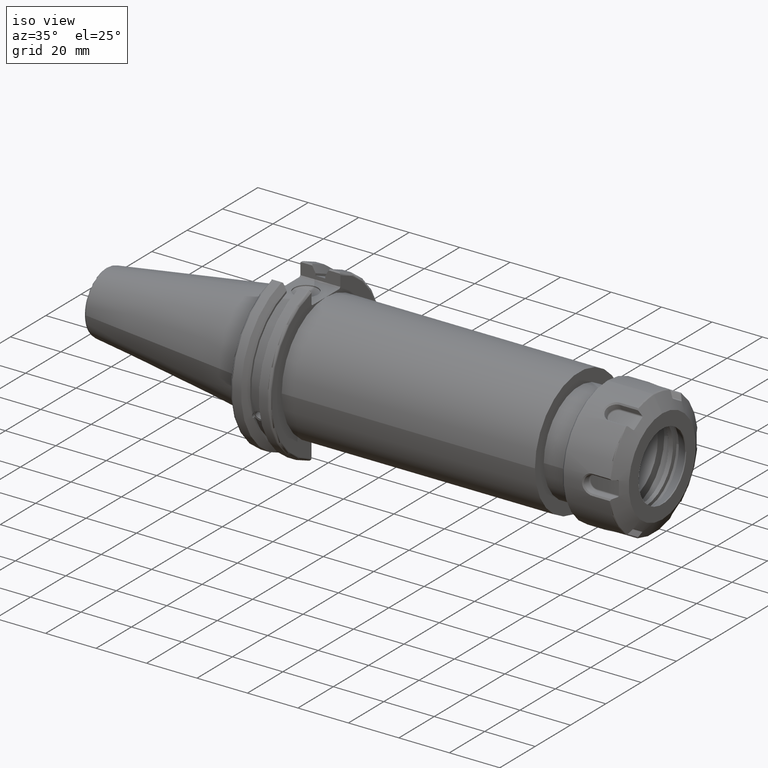
[diagram: clean part render]
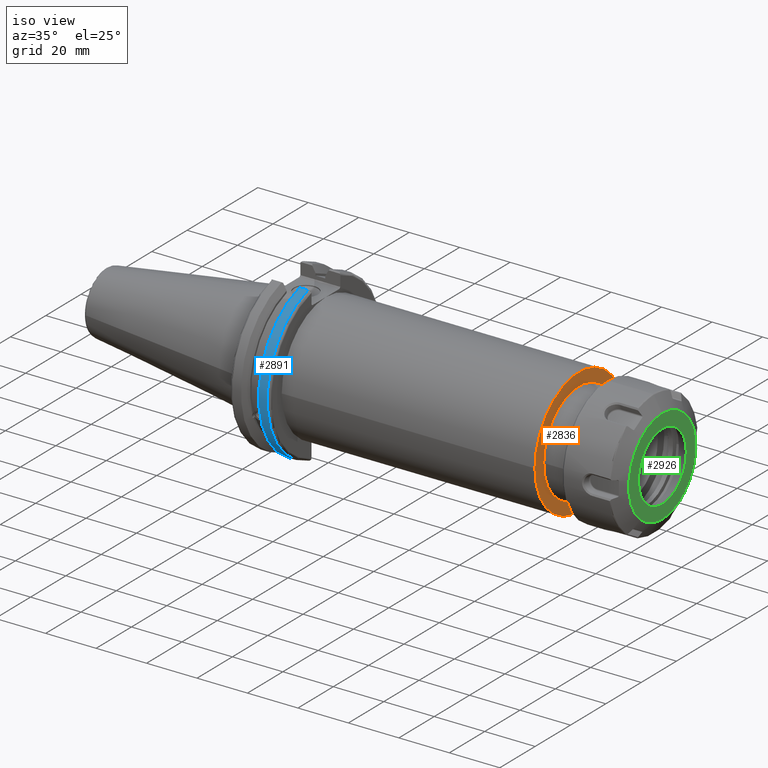
[diagram: same view with three faces highlighted in distinct colors, each labeled with its STEP entity id]
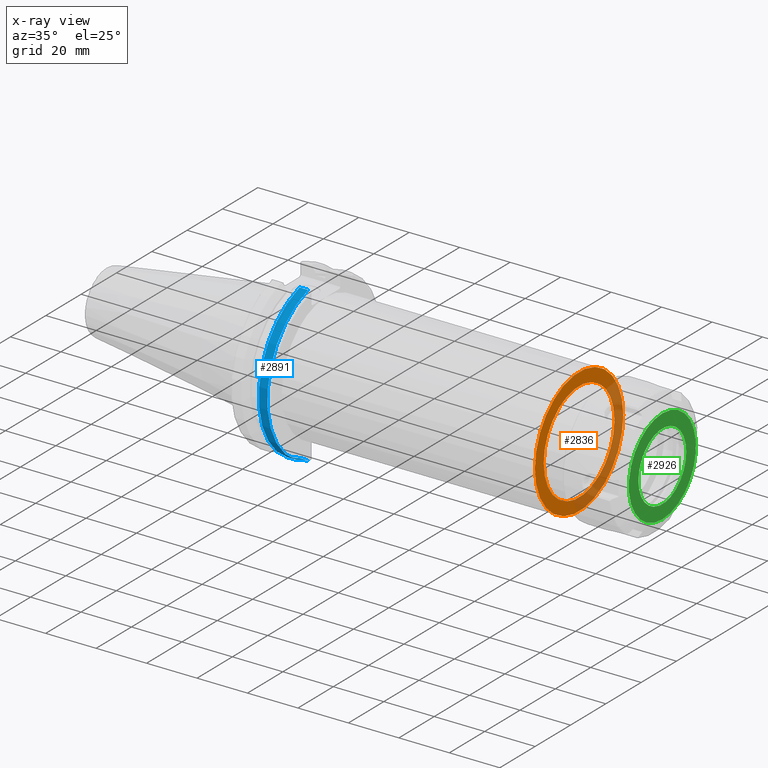
[diagram: x-ray of the same camera — body ghosted, the three highlighted faces saturated]
A machine part, iso view with three faces highlighted in distinct colors.
The next image is the same camera in x-ray (body ghosted, the three faces saturated) — at least one of them is partly hidden behind the body in this view.
Their STEP definitions:

[orange] entity #2836 — the highlighted planar face has unit normal (1, 0, 0).
#177=PLANE('',#3090);
#250=FACE_BOUND('',#469,.T.);
#298=FACE_OUTER_BOUND('',#468,.T.);
#468=EDGE_LOOP('',(#1956));
#469=EDGE_LOOP('',(#1957));
#647=CIRCLE('',#3074,25.);
#658=CIRCLE('',#3091,20.);
#1215=VERTEX_POINT('',#4202);
#1231=VERTEX_POINT('',#4314);
#1492=EDGE_CURVE('',#1215,#1215,#647,.T.);
#1514=EDGE_CURVE('',#1231,#1231,#658,.T.);
#1956=ORIENTED_EDGE('',*,*,#1492,.T.);
#1957=ORIENTED_EDGE('',*,*,#1514,.F.);
#2836=ADVANCED_FACE('',(#298,#250),#177,.T.);
#3074=AXIS2_PLACEMENT_3D('',#4203,#3391,#3392);
#3090=AXIS2_PLACEMENT_3D('',#4313,#3430,#3431);
#3091=AXIS2_PLACEMENT_3D('',#4315,#3432,#3433);
#3391=DIRECTION('center_axis',(1.,0.,0.));
#3392=DIRECTION('ref_axis',(0.,0.,-1.));
#3430=DIRECTION('center_axis',(1.,0.,0.));
#3431=DIRECTION('ref_axis',(0.,0.,-1.));
#3432=DIRECTION('center_axis',(1.,0.,0.));
#3433=DIRECTION('ref_axis',(0.,0.,-1.));
#4202=CARTESIAN_POINT('',(119.4,-25.,-3.06161699786838E-15));
#4203=CARTESIAN_POINT('Origin',(119.4,0.,0.));
#4313=CARTESIAN_POINT('Origin',(119.4,20.,0.));
#4314=CARTESIAN_POINT('',(119.4,-20.,-2.44929359829471E-15));
#4315=CARTESIAN_POINT('Origin',(119.4,0.,0.));

[blue] entity #2891 — the highlighted cylindrical surface (partial cylindrical patch) has radius 31.75 mm, axis along (1, 0, 0).
#353=FACE_OUTER_BOUND('',#533,.T.);
#533=EDGE_LOOP('',(#2274,#2275,#2276,#2277));
#668=CIRCLE('',#3124,31.75);
#693=CIRCLE('',#3182,31.75);
#853=LINE('',#4899,#1027);
#854=LINE('',#4901,#1028);
#1027=VECTOR('',#3738,10.);
#1028=VECTOR('',#3741,10.);
#1262=VERTEX_POINT('',#4457);
#1263=VERTEX_POINT('',#4461);
#1329=VERTEX_POINT('',#4748);
#1330=VERTEX_POINT('',#4757);
#1557=EDGE_CURVE('',#1263,#1262,#668,.T.);
#1648=EDGE_CURVE('',#1329,#1330,#693,.T.);
#1690=EDGE_CURVE('',#1330,#1262,#853,.T.);
#1691=EDGE_CURVE('',#1263,#1329,#854,.T.);
#2274=ORIENTED_EDGE('',*,*,#1648,.F.);
#2275=ORIENTED_EDGE('',*,*,#1691,.F.);
#2276=ORIENTED_EDGE('',*,*,#1557,.T.);
#2277=ORIENTED_EDGE('',*,*,#1690,.F.);
#2803=CYLINDRICAL_SURFACE('',#3208,31.75);
#2891=ADVANCED_FACE('',(#353),#2803,.T.);
#3124=AXIS2_PLACEMENT_3D('',#4462,#3515,#3516);
#3182=AXIS2_PLACEMENT_3D('',#4758,#3668,#3669);
#3208=AXIS2_PLACEMENT_3D('',#4900,#3739,#3740);
#3515=DIRECTION('center_axis',(1.,0.,0.));
#3516=DIRECTION('ref_axis',(0.,0.,-1.));
#3668=DIRECTION('center_axis',(1.,0.,0.));
#3669=DIRECTION('ref_axis',(0.,-1.,1.60812264967664E-16));
#3738=DIRECTION('',(-1.,0.,0.));
#3739=DIRECTION('center_axis',(1.,0.,0.));
#3740=DIRECTION('ref_axis',(0.,-1.,1.22464679914735E-16));
#3741=DIRECTION('',(1.,0.,0.));
#4457=CARTESIAN_POINT('',(14.6531667690756,-8.67204822802685,-30.5427254764662));
#4461=CARTESIAN_POINT('',(14.6531667690756,-8.67204822802685,30.5427254764662));
#4462=CARTESIAN_POINT('Origin',(14.6531667690756,0.,0.));
#4748=CARTESIAN_POINT('',(18.05,-8.67204822802685,30.5427254764662));
#4757=CARTESIAN_POINT('',(18.05,-8.67204822802685,-30.5427254764662));
#4758=CARTESIAN_POINT('Origin',(18.05,0.,0.));
#4899=CARTESIAN_POINT('',(16.8515833845378,-8.67204822802685,-30.5427254764662));
#4900=CARTESIAN_POINT('Origin',(16.8515833845378,0.,0.));
#4901=CARTESIAN_POINT('',(16.8515833845378,-8.67204822802685,30.5427254764662));

[green] entity #2926 — the highlighted planar face has unit normal (1, 0, 0).
#216=PLANE('',#3273);
#267=FACE_BOUND('',#576,.T.);
#388=FACE_OUTER_BOUND('',#575,.T.);
#575=EDGE_LOOP('',(#2417));
#576=EDGE_LOOP('',(#2418));
#731=CIRCLE('',#3272,13.55);
#732=CIRCLE('',#3274,19.);
#1375=VERTEX_POINT('',#5006);
#1376=VERTEX_POINT('',#5010);
#1737=EDGE_CURVE('',#1375,#1375,#731,.T.);
#1738=EDGE_CURVE('',#1376,#1376,#732,.T.);
#2417=ORIENTED_EDGE('',*,*,#1738,.T.);
#2418=ORIENTED_EDGE('',*,*,#1737,.F.);
#2926=ADVANCED_FACE('',(#388,#267),#216,.T.);
#3272=AXIS2_PLACEMENT_3D('',#5008,#3884,#3885);
#3273=AXIS2_PLACEMENT_3D('',#5009,#3886,#3887);
#3274=AXIS2_PLACEMENT_3D('',#5011,#3888,#3889);
#3884=DIRECTION('center_axis',(1.,0.,0.));
#3885=DIRECTION('ref_axis',(0.,-1.,0.));
#3886=DIRECTION('center_axis',(1.,0.,0.));
#3887=DIRECTION('ref_axis',(0.,0.,-1.));
#3888=DIRECTION('center_axis',(1.,0.,0.));
#3889=DIRECTION('ref_axis',(0.,0.,1.));
#5006=CARTESIAN_POINT('',(11.25,13.55,1.65939641284466E-15));
#5008=CARTESIAN_POINT('Origin',(11.25,0.,0.));
#5009=CARTESIAN_POINT('Origin',(11.25,0.,0.));
#5010=CARTESIAN_POINT('',(11.25,0.,19.));
#5011=CARTESIAN_POINT('Origin',(11.25,0.,0.));